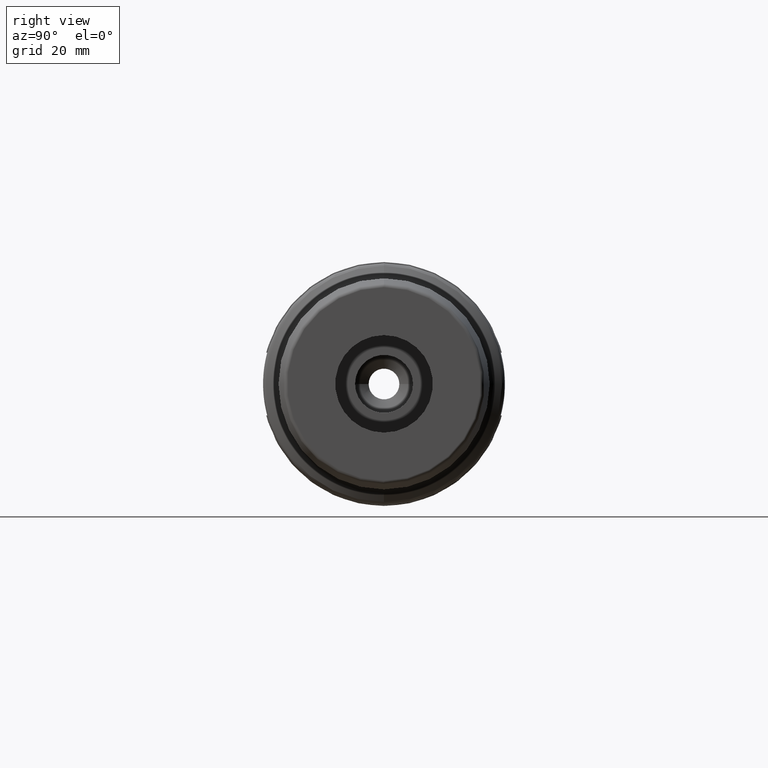
[diagram: clean part render]
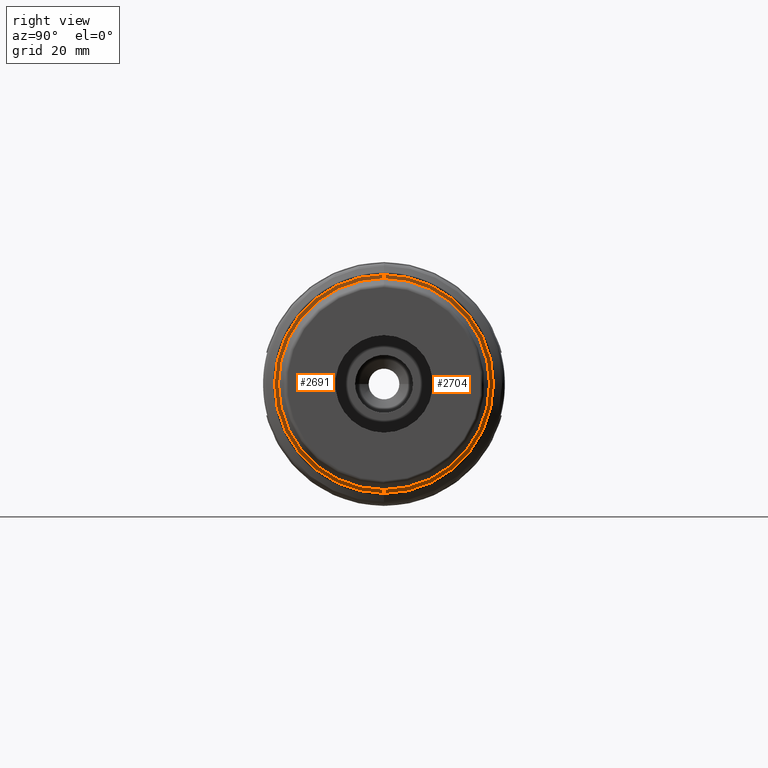
[diagram: same view with one multi-face feature highlighted, each face labeled with its STEP entity id]
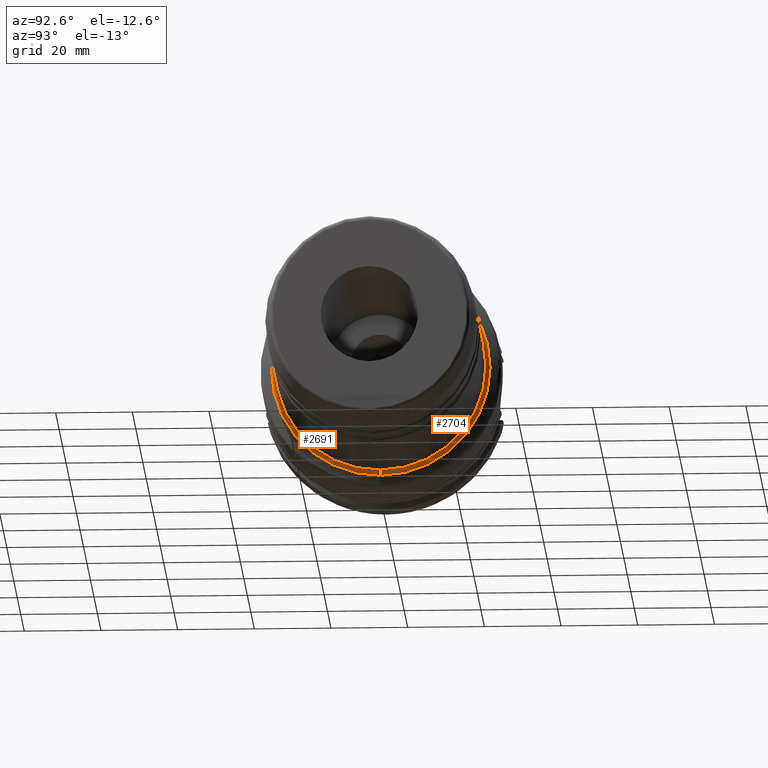
[diagram: same view with one multi-face feature highlighted, each face labeled with its STEP entity id]
A machine part, right view. The highlighted faces form ONE feature: a constant-radius fillet chain: 2 tangent blend faces with common blend radius 2 mm. The faces share edges in the B-rep.
A second angle (auxiliary view) of the same feature is appended — it is thin or edge-on in the first view.
Their STEP definitions:
[1] entity #2704 (Torus):
#602=CARTESIAN_POINT('',(3.615470053835E1,0.E0,-2.95E1));
#603=DIRECTION('',(0.E0,-1.E0,0.E0));
#604=DIRECTION('',(0.E0,0.E0,1.E0));
#605=AXIS2_PLACEMENT_3D('',#602,#603,#604);
#607=CARTESIAN_POINT('',(3.615470053835E1,0.E0,2.95E1));
#608=DIRECTION('',(0.E0,1.E0,0.E0));
#609=DIRECTION('',(0.E0,0.E0,-1.E0));
#610=AXIS2_PLACEMENT_3D('',#607,#608,#609);
#617=CARTESIAN_POINT('',(3.615470053835E1,0.E0,0.E0));
#618=DIRECTION('',(1.E0,0.E0,0.E0));
#619=DIRECTION('',(0.E0,0.E0,-1.E0));
#620=AXIS2_PLACEMENT_3D('',#617,#618,#619);
#622=CARTESIAN_POINT('',(3.442264973079E1,0.E0,0.E0));
#623=DIRECTION('',(1.E0,0.E0,0.E0));
#624=DIRECTION('',(0.E0,0.E0,-1.E0));
#625=AXIS2_PLACEMENT_3D('',#622,#623,#624);
#1633=CARTESIAN_POINT('',(3.615470053835E1,0.E0,-2.75E1));
#1634=VERTEX_POINT('',#1633);
#1635=CARTESIAN_POINT('',(3.442264973079E1,0.E0,-2.85E1));
#1636=VERTEX_POINT('',#1635);
#1687=CARTESIAN_POINT('',(3.615470053835E1,0.E0,2.75E1));
#1688=VERTEX_POINT('',#1687);
#1689=CARTESIAN_POINT('',(3.442264973079E1,0.E0,2.85E1));
#1690=VERTEX_POINT('',#1689);
#2692=CARTESIAN_POINT('',(3.615470053835E1,0.E0,0.E0));
#2693=DIRECTION('',(1.E0,0.E0,0.E0));
#2694=DIRECTION('',(0.E0,0.E0,1.E0));
#2695=AXIS2_PLACEMENT_3D('',#2692,#2693,#2694);
#2696=TOROIDAL_SURFACE('',#2695,2.95E1,2.E0);
#2697=ORIENTED_EDGE('',*,*,#2682,.F.);
#2698=ORIENTED_EDGE('',*,*,#2659,.T.);
#2699=ORIENTED_EDGE('',*,*,#2686,.T.);
#2701=ORIENTED_EDGE('',*,*,#2700,.F.);
#2702=EDGE_LOOP('',(#2697,#2698,#2699,#2701));
#2703=FACE_OUTER_BOUND('',#2702,.F.);
#2704=ADVANCED_FACE('',(#2703),#2696,.F.);
#606=CIRCLE('',#605,2.E0);
#611=CIRCLE('',#610,2.E0);
#621=CIRCLE('',#620,2.75E1);
#626=CIRCLE('',#625,2.85E1);
#2659=EDGE_CURVE('',#1634,#1688,#621,.T.);
#2682=EDGE_CURVE('',#1634,#1636,#606,.T.);
#2686=EDGE_CURVE('',#1688,#1690,#611,.T.);
#2700=EDGE_CURVE('',#1636,#1690,#626,.T.);
[2] entity #2691 (Torus):
#602=CARTESIAN_POINT('',(3.615470053835E1,0.E0,-2.95E1));
#603=DIRECTION('',(0.E0,-1.E0,0.E0));
#604=DIRECTION('',(0.E0,0.E0,1.E0));
#605=AXIS2_PLACEMENT_3D('',#602,#603,#604);
#607=CARTESIAN_POINT('',(3.615470053835E1,0.E0,2.95E1));
#608=DIRECTION('',(0.E0,1.E0,0.E0));
#609=DIRECTION('',(0.E0,0.E0,-1.E0));
#610=AXIS2_PLACEMENT_3D('',#607,#608,#609);
#612=CARTESIAN_POINT('',(3.615470053835E1,0.E0,0.E0));
#613=DIRECTION('',(-1.E0,0.E0,0.E0));
#614=DIRECTION('',(0.E0,0.E0,-1.E0));
#615=AXIS2_PLACEMENT_3D('',#612,#613,#614);
#635=CARTESIAN_POINT('',(3.442264973079E1,0.E0,0.E0));
#636=DIRECTION('',(-1.E0,0.E0,0.E0));
#637=DIRECTION('',(0.E0,0.E0,-1.E0));
#638=AXIS2_PLACEMENT_3D('',#635,#636,#637);
#1633=CARTESIAN_POINT('',(3.615470053835E1,0.E0,-2.75E1));
#1634=VERTEX_POINT('',#1633);
#1635=CARTESIAN_POINT('',(3.442264973079E1,0.E0,-2.85E1));
#1636=VERTEX_POINT('',#1635);
#1687=CARTESIAN_POINT('',(3.615470053835E1,0.E0,2.75E1));
#1688=VERTEX_POINT('',#1687);
#1689=CARTESIAN_POINT('',(3.442264973079E1,0.E0,2.85E1));
#1690=VERTEX_POINT('',#1689);
#2677=CARTESIAN_POINT('',(3.615470053835E1,0.E0,0.E0));
#2678=DIRECTION('',(1.E0,0.E0,0.E0));
#2679=DIRECTION('',(0.E0,0.E0,1.E0));
#2680=AXIS2_PLACEMENT_3D('',#2677,#2678,#2679);
#2681=TOROIDAL_SURFACE('',#2680,2.95E1,2.E0);
#2683=ORIENTED_EDGE('',*,*,#2682,.T.);
#2685=ORIENTED_EDGE('',*,*,#2684,.T.);
#2687=ORIENTED_EDGE('',*,*,#2686,.F.);
#2688=ORIENTED_EDGE('',*,*,#2670,.F.);
#2689=EDGE_LOOP('',(#2683,#2685,#2687,#2688));
#2690=FACE_OUTER_BOUND('',#2689,.F.);
#2691=ADVANCED_FACE('',(#2690),#2681,.F.);
#606=CIRCLE('',#605,2.E0);
#611=CIRCLE('',#610,2.E0);
#616=CIRCLE('',#615,2.75E1);
#639=CIRCLE('',#638,2.85E1);
#2670=EDGE_CURVE('',#1634,#1688,#616,.T.);
#2682=EDGE_CURVE('',#1634,#1636,#606,.T.);
#2684=EDGE_CURVE('',#1636,#1690,#639,.T.);
#2686=EDGE_CURVE('',#1688,#1690,#611,.T.);